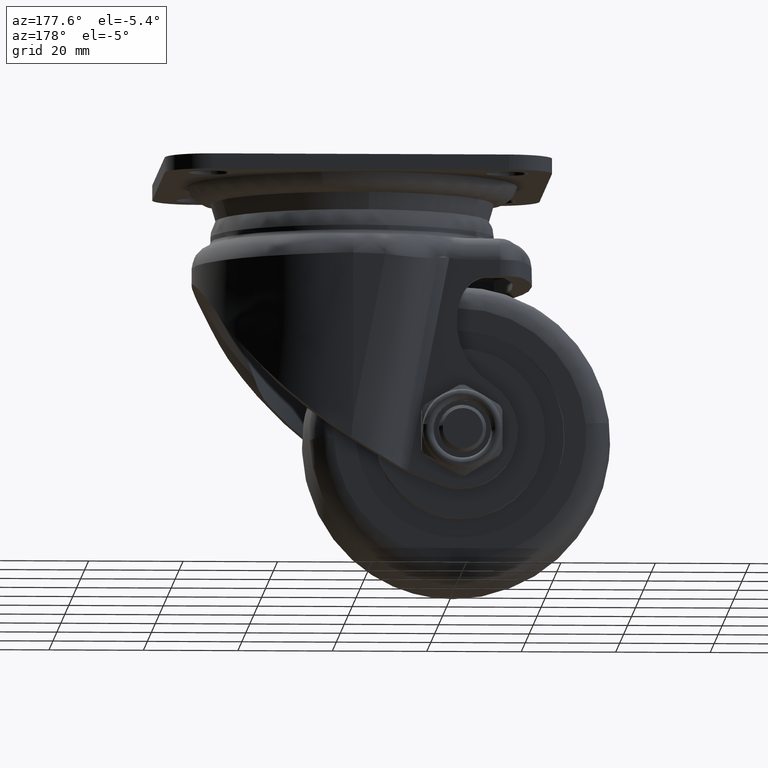
[diagram: clean part render]
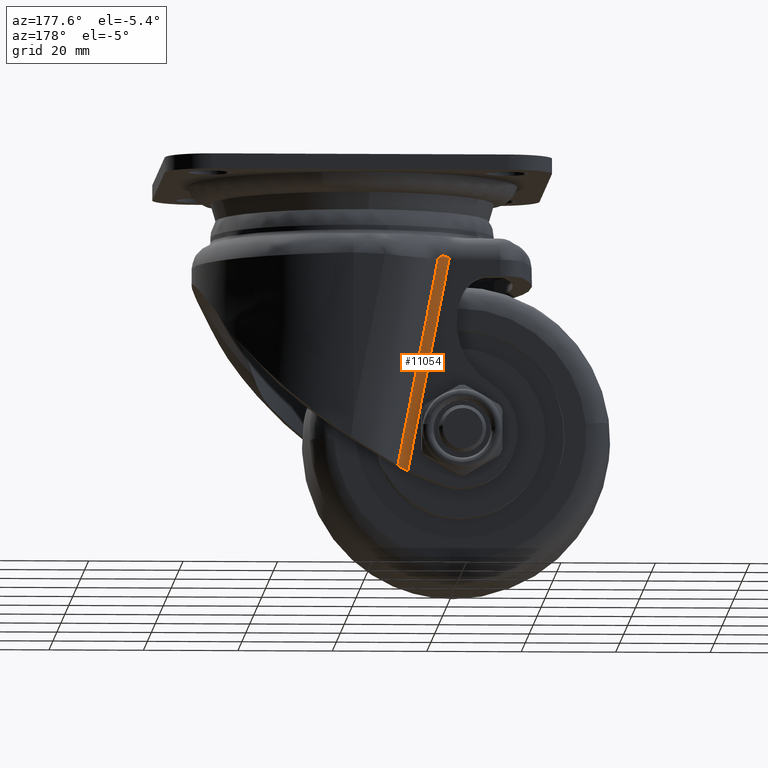
[diagram: same view with one face highlighted and labeled with its STEP entity id]
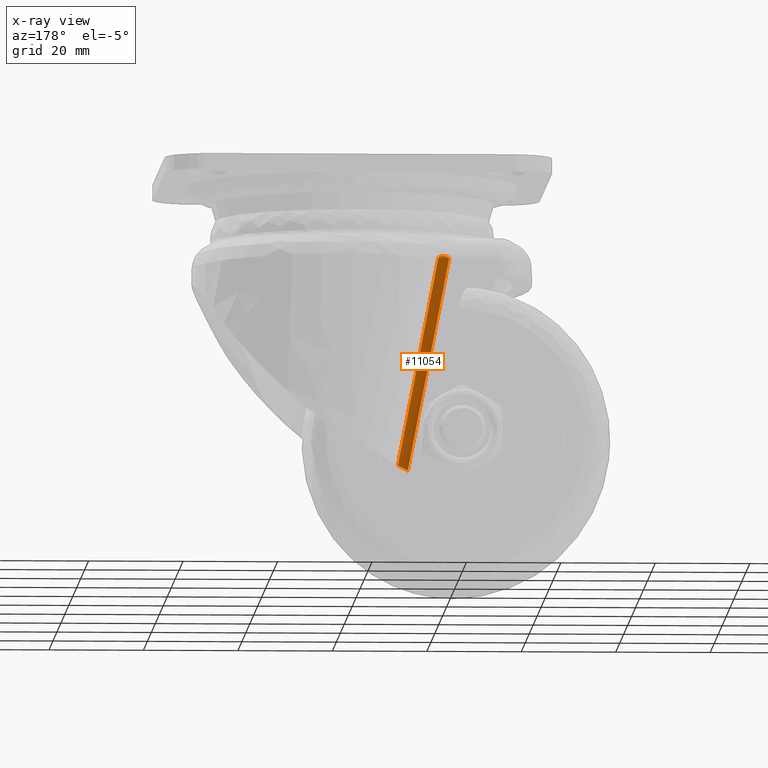
[diagram: x-ray of the same camera — body ghosted, the highlighted face saturated]
A machine part, auxiliary view. The second image highlights one B-rep face of the part: STEP entity #11054.
The next image is the same camera in x-ray: the body ghosted, the highlighted face saturated — about 0% of this face is hidden behind the body in this view.
In plain terms, the highlighted face is a freeform B-spline surface patch.
Its self-contained STEP definition (entity closure, byte-faithful):
#7530=CARTESIAN_POINT('',(-12.485738634844100,26.500000000000000,-21.834449232547751));
#7531=VERTEX_POINT('',#7530);
#7657=CARTESIAN_POINT('',(-10.181566704599421,27.578856664414101,-22.422385737217901));
#7658=VERTEX_POINT('',#7657);
#7672=CARTESIAN_POINT('',(-12.485738634844100,26.500000000000000,-21.834449232547801));
#7673=CARTESIAN_POINT('',(-12.367209828182050,26.500000000000011,-21.821600053459129));
#7674=CARTESIAN_POINT('',(-12.250174988143440,26.506968034850200,-21.802262314640139));
#7675=CARTESIAN_POINT('',(-12.075622297378469,26.527587304266518,-21.771425618827781));
#7676=CARTESIAN_POINT('',(-12.017570044996170,26.536178522530619,-21.760829065404099));
#7677=CARTESIAN_POINT('',(-11.902425640369600,26.556674409905309,-21.740475076083669));
#7678=CARTESIAN_POINT('',(-11.845236127526350,26.568587827612621,-21.730699392704221));
#7679=CARTESIAN_POINT('',(-11.674580396872541,26.609376285613120,-21.704566397436349));
#7680=CARTESIAN_POINT('',(-11.562021660541200,26.643260251160608,-21.691364076474390));
#7681=CARTESIAN_POINT('',(-11.394175173833490,26.704996785173570,-21.686315041737629));
#7682=CARTESIAN_POINT('',(-11.338510641545030,26.727382275950070,-21.687140218941789));
#7683=CARTESIAN_POINT('',(-11.229462420299660,26.775057581324941,-21.694906814385970));
#7684=CARTESIAN_POINT('',(-11.175599226844060,26.800557931830440,-21.701891198063681));
#7685=CARTESIAN_POINT('',(-11.018547887946060,26.880617953904078,-21.732789512442189));
#7686=CARTESIAN_POINT('',(-10.921210948092950,26.937934629785950,-21.766354383504360));
#7687=CARTESIAN_POINT('',(-10.784605851149291,27.028334829876020,-21.834212561514619));
#7688=CARTESIAN_POINT('',(-10.740472286362120,27.059339773392690,-21.859832579750801));
#7689=CARTESIAN_POINT('',(-10.655831841559079,27.122140017415710,-21.915768602064659));
#7690=CARTESIAN_POINT('',(-10.615491292613930,27.153792596900882,-21.945931343227439));
#7691=CARTESIAN_POINT('',(-10.499445778690781,27.249511633556601,-22.041808229127739));
#7692=CARTESIAN_POINT('',(-10.428513417698950,27.314507065463339,-22.113088340804470));
#7693=CARTESIAN_POINT('',(-10.297786764010819,27.445390165533929,-22.262880052333539));
#7694=CARTESIAN_POINT('',(-10.237741262779320,27.511482284919591,-22.341592527581099));
#7695=CARTESIAN_POINT('',(-10.181566704599421,27.578856664414101,-22.422385737217901));
#7696=B_SPLINE_CURVE_WITH_KNOTS('',3,(#7672,#7673,#7674,#7675,#7676,#7677,#7678,#7679,#7680,#7681,#7682,#7683,#7684,#7685,#7686,#7687,#7688,#7689,#7690,#7691,#7692,#7693,#7694,#7695),.UNSPECIFIED.,.F.,.U.,(4,2,2,2,2,2,2,2,2,2,2,4),(0.0,0.125000000000001,0.187500000000001,0.250000000000000,0.375000000000002,0.437500000000003,0.500000000000004,0.625000000000006,0.687500000000006,0.750000000000006,0.875000000000003,1.0),.UNSPECIFIED.);
#7697=EDGE_CURVE('',#7531,#7658,#7696,.T.);
#10976=CARTESIAN_POINT('',(-12.485738634844100,26.500000000000000,-67.899640263526692));
#10977=VERTEX_POINT('',#10976);
#10978=CARTESIAN_POINT('',(-12.485738634844100,26.500000000000000,-21.834449232547751));
#10979=CARTESIAN_POINT('',(-12.485738634844100,26.500000000000000,-67.899640263526692));
#10980=QUASI_UNIFORM_CURVE('',1,(#10978,#10979),.UNSPECIFIED.,.F.,.U.);
#10981=EDGE_CURVE('',#7531,#10977,#10980,.T.);
#11008=CARTESIAN_POINT('',(-12.511918241339220,26.500114230807490,-20.531915148872169));
#11009=CARTESIAN_POINT('',(-12.511918241339220,26.500114230807490,-69.083833391393057));
#11010=CARTESIAN_POINT('',(-11.012664861787000,26.487030444779279,-20.531915148872166));
#11011=CARTESIAN_POINT('',(-11.012664861787000,26.487030444779279,-69.083833391393057));
#11012=CARTESIAN_POINT('',(-10.102207633066463,27.678248105925270,-20.531915148872166));
#11013=CARTESIAN_POINT('',(-10.102207633066463,27.678248105925270,-69.083833391393057));
#11021=(BOUNDED_SURFACE()B_SPLINE_SURFACE(1,2,((#11008,#11010,#11012),(#11009,#11011,#11013)),.UNSPECIFIED.,.F.,.F.,.U.)B_SPLINE_SURFACE_WITH_KNOTS((2,2),(3,3),(0.0,48.551918242520898),(0.0,2.831648400420107),.UNSPECIFIED.)GEOMETRIC_REPRESENTATION_ITEM()RATIONAL_B_SPLINE_SURFACE(((1.0,0.892869739548066,0.996337271652710),(1.0,0.892869739548066,0.996337271652710)))REPRESENTATION_ITEM('')SURFACE());
#11022=ORIENTED_EDGE('',*,*,#10981,.F.);
#11023=ORIENTED_EDGE('',*,*,#7697,.T.);
#11024=CARTESIAN_POINT('',(-10.181566704598620,27.578856664413451,-67.332189083804295));
#11025=VERTEX_POINT('',#11024);
#11026=CARTESIAN_POINT('',(-10.181566704599421,27.578856664414101,-22.422385737217901));
#11027=CARTESIAN_POINT('',(-10.181566704598620,27.578856664413451,-67.332189083804295));
#11028=QUASI_UNIFORM_CURVE('',1,(#11026,#11027),.UNSPECIFIED.,.F.,.U.);
#11029=EDGE_CURVE('',#7658,#11025,#11028,.T.);
#11030=ORIENTED_EDGE('',*,*,#11029,.T.);
#11031=CARTESIAN_POINT('',(-12.485738634844100,26.500000000000000,-67.899640263526692));
#11032=CARTESIAN_POINT('',(-12.265767319099311,26.500000000000011,-67.848372925445275));
#11033=CARTESIAN_POINT('',(-12.049935894130209,26.523902035523829,-67.797244007672077));
#11034=CARTESIAN_POINT('',(-11.732131820453850,26.594170075512359,-67.720824014276445));
#11035=CARTESIAN_POINT('',(-11.627196240584389,26.623380425139761,-67.695398128962637));
#11036=CARTESIAN_POINT('',(-11.471336788417339,26.676173217198240,-67.657357201491649));
#11037=CARTESIAN_POINT('',(-11.419631966525429,26.695287000510660,-67.644690647734535));
#11038=CARTESIAN_POINT('',(-11.317989228605111,26.736060825204980,-67.619702123214168));
#11039=CARTESIAN_POINT('',(-11.267891268686610,26.757771625211490,-67.607341189557474));
#11040=CARTESIAN_POINT('',(-11.020961915452670,26.872847962077959,-67.546207552092156));
#11041=CARTESIAN_POINT('',(-10.834683690875741,26.985542918807159,-67.499417386447121));
#11042=CARTESIAN_POINT('',(-10.616301550782721,27.153037113350791,-67.443944390950605));
#11043=CARTESIAN_POINT('',(-10.573256731581161,27.187970798818299,-67.432976958053274));
#11044=CARTESIAN_POINT('',(-10.489240641734471,27.260120132477109,-67.411510251438060));
#11045=CARTESIAN_POINT('',(-10.448284636226880,27.297310514974189,-67.401015085985662));
#11046=CARTESIAN_POINT('',(-10.328561320223921,27.412220057336931,-67.370254585429976));
#11047=CARTESIAN_POINT('',(-10.252928653272130,27.493266903371019,-67.350711802363264));
#11048=CARTESIAN_POINT('',(-10.181566704598620,27.578856664413451,-67.332189083804394));
#11049=B_SPLINE_CURVE_WITH_KNOTS('',3,(#11031,#11032,#11033,#11034,#11035,#11036,#11037,#11038,#11039,#11040,#11041,#11042,#11043,#11044,#11045,#11046,#11047,#11048),.UNSPECIFIED.,.F.,.U.,(4,2,2,2,2,2,2,2,4),(0.0,0.249999999999995,0.374999999999992,0.437499999999991,0.499999999999991,0.749999999999997,0.812499999999998,0.874999999999999,1.0),.UNSPECIFIED.);
#11050=EDGE_CURVE('',#10977,#11025,#11049,.T.);
#11051=ORIENTED_EDGE('',*,*,#11050,.F.);
#11052=EDGE_LOOP('',(#11022,#11023,#11030,#11051));
#11053=FACE_OUTER_BOUND('',#11052,.T.);
#11054=ADVANCED_FACE('',(#11053),#11021,.F.);